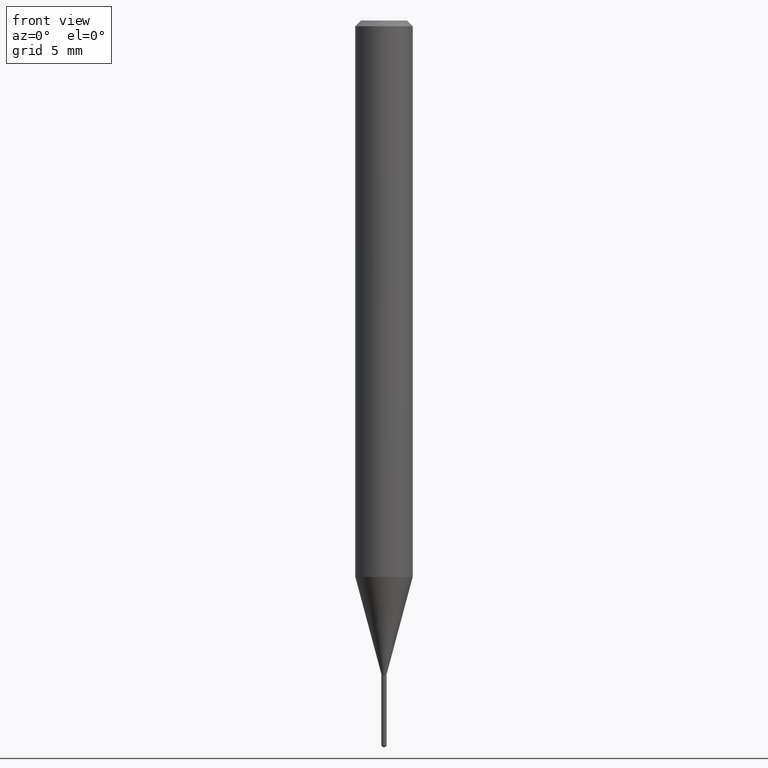
[diagram: clean part render]
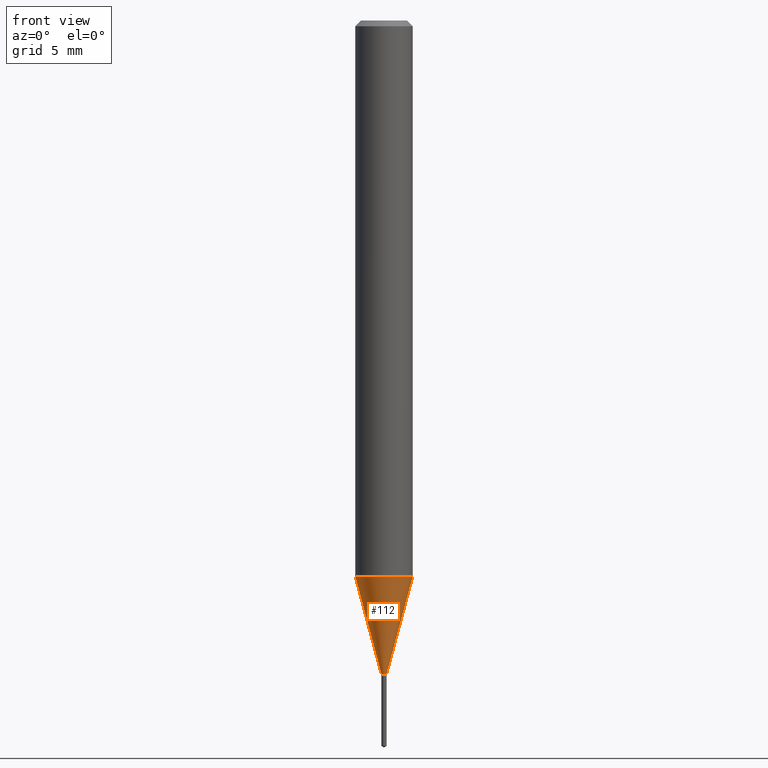
[diagram: same view with one face highlighted and labeled with its STEP entity id]
A machine part, front view. The second image highlights one B-rep face of the part: STEP entity #112.
In plain terms, the highlighted conical surface has half-angle 15 deg.
Its self-contained STEP definition (entity closure, byte-faithful):
#23 = DIRECTION ( 'NONE',  ( -2.445468806185136597E-29, 3.491481338843145583E-15, 1.000000000000000000 ) ) ;
#26 = EDGE_LOOP ( 'NONE', ( #406, #428, #178, #203 ) ) ;
#39 = DIRECTION ( 'NONE',  ( 1.000000000000000000, -6.982962677686245411E-15, 0.000000000000000000 ) ) ;
#63 = CONICAL_SURFACE ( 'NONE', #131, 0.005499999999999999681, 0.2617993877991499074 ) ;
#71 = VECTOR ( 'NONE', #424, 39.37007874015748854 ) ;
#85 = CARTESIAN_POINT ( 'NONE',  ( -0.005499999999999999681, -4.658359142812762824E-15, -1.344799999999999773 ) ) ;
#105 = CARTESIAN_POINT ( 'NONE',  ( -0.005499999999999999681, -4.656264254009456230E-15, -1.344799999999999773 ) ) ;
#111 = VERTEX_POINT ( 'NONE', #402 ) ;
#112 = ADVANCED_FACE ( 'NONE', ( #364 ), #63, .T. ) ;
#114 = DIRECTION ( 'NONE',  ( -0.2588190451025211836, 5.211531920934547886E-15, 0.9659258262890679791 ) ) ;
#121 = DIRECTION ( 'NONE',  ( -2.445468806185136597E-29, 3.491481338843145583E-15, 1.000000000000000000 ) ) ;
#131 = AXIS2_PLACEMENT_3D ( 'NONE', #251, #23, #477 ) ;
#141 = AXIS2_PLACEMENT_3D ( 'NONE', #387, #121, #39 ) ;
#155 = VECTOR ( 'NONE', #114, 39.37007874015748854 ) ;
#159 = EDGE_CURVE ( 'NONE', #331, #111, #451, .T. ) ;
#162 = VERTEX_POINT ( 'NONE', #264 ) ;
#163 = CIRCLE ( 'NONE', #141, 0.005499999999999999681 ) ;
#178 = ORIENTED_EDGE ( 'NONE', *, *, #259, .T. ) ;
#189 = EDGE_CURVE ( 'NONE', #111, #162, #199, .T. ) ;
#199 = CIRCLE ( 'NONE', #244, 0.05905000000000014404 ) ;
#203 = ORIENTED_EDGE ( 'NONE', *, *, #189, .F. ) ;
#244 = AXIS2_PLACEMENT_3D ( 'NONE', #456, #377, #270 ) ;
#251 = CARTESIAN_POINT ( 'NONE',  ( 3.288666450557771176E-29, -4.695344104476262170E-15, -1.344799999999999773 ) ) ;
#259 = EDGE_CURVE ( 'NONE', #279, #162, #427, .T. ) ;
#264 = CARTESIAN_POINT ( 'NONE',  ( 0.05905000000000014404, -4.409910893668218732E-15, -1.144948679254686352 ) ) ;
#270 = DIRECTION ( 'NONE',  ( 1.000000000000000000, -6.982962677686263555E-15, 0.000000000000000000 ) ) ;
#279 = VERTEX_POINT ( 'NONE', #312 ) ;
#312 = CARTESIAN_POINT ( 'NONE',  ( 0.005499999999999999681, -4.733750399203536037E-15, -1.344799999999999773 ) ) ;
#328 = EDGE_CURVE ( 'NONE', #331, #279, #163, .T. ) ;
#331 = VERTEX_POINT ( 'NONE', #85 ) ;
#364 = FACE_OUTER_BOUND ( 'NONE', #26, .T. ) ;
#377 = DIRECTION ( 'NONE',  ( -2.445468806185136597E-29, 3.491481338843145583E-15, 1.000000000000000000 ) ) ;
#387 = CARTESIAN_POINT ( 'NONE',  ( 3.288666450557771176E-29, -4.695344104476262170E-15, -1.344799999999999773 ) ) ;
#402 = CARTESIAN_POINT ( 'NONE',  ( -0.05905000000000014404, -3.577991462084503530E-15, -1.144948679254686352 ) ) ;
#406 = ORIENTED_EDGE ( 'NONE', *, *, #159, .F. ) ;
#424 = DIRECTION ( 'NONE',  ( 0.2588190451025211836, 1.565188264969622559E-15, 0.9659258262890679791 ) ) ;
#427 = LINE ( 'NONE', #468, #71 ) ;
#428 = ORIENTED_EDGE ( 'NONE', *, *, #328, .T. ) ;
#451 = LINE ( 'NONE', #105, #155 ) ;
#456 = CARTESIAN_POINT ( 'NONE',  ( 2.799936279800206478E-29, -3.997566947550843811E-15, -1.144948679254686352 ) ) ;
#468 = CARTESIAN_POINT ( 'NONE',  ( 0.005499999999999999681, -4.733750399203536037E-15, -1.344799999999999773 ) ) ;
#477 = DIRECTION ( 'NONE',  ( 1.000000000000000000, -6.982962677686245411E-15, 0.000000000000000000 ) ) ;